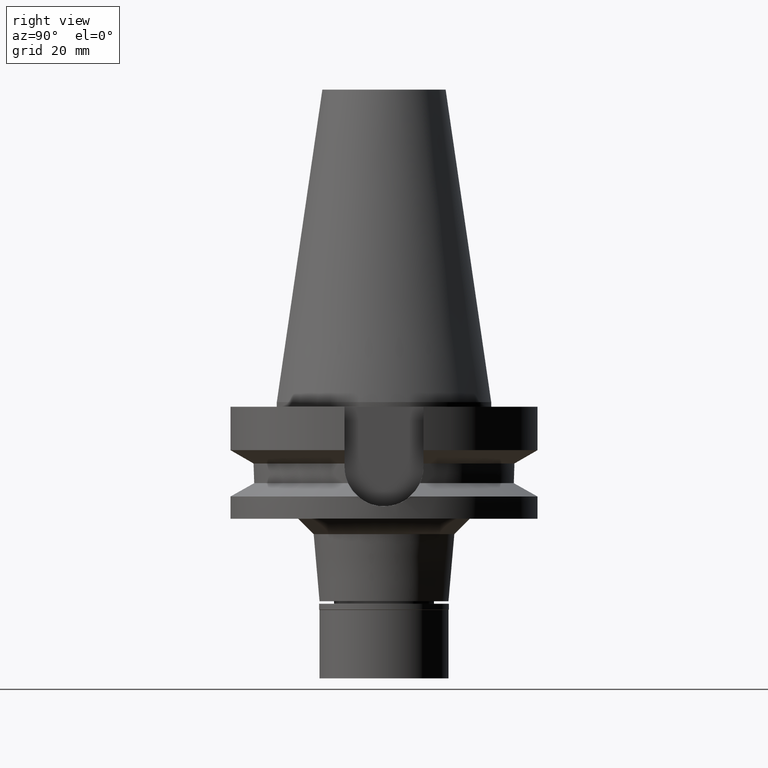
[diagram: clean part render]
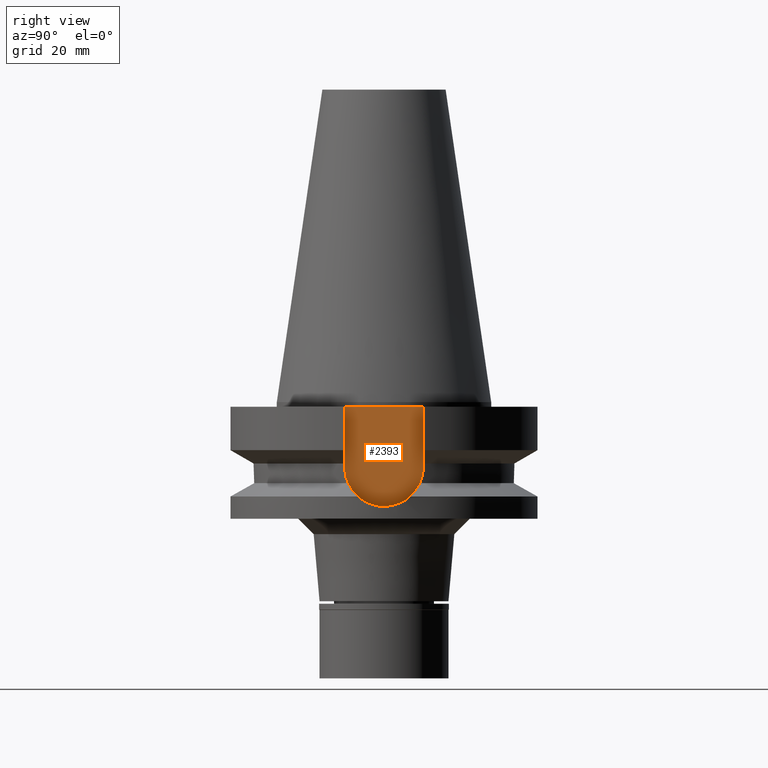
[diagram: same view with one face highlighted and labeled with its STEP entity id]
A machine part, right view. The second image highlights one B-rep face of the part: STEP entity #2393.
In plain terms, the highlighted planar face has unit normal (1, 0, 0).
Its self-contained STEP definition (entity closure, byte-faithful):
#50 = LINE ( 'NONE', #289, #1256 ) ;
#107 = CIRCLE ( 'NONE', #2316, 12.84999999999999964 ) ;
#143 = CARTESIAN_POINT ( 'NONE',  ( 35.39999999999999858, 12.84999999999999964, -1.500000000000000000 ) ) ;
#152 = VECTOR ( 'NONE', #2434, 1000.000000000000000 ) ;
#165 = LINE ( 'NONE', #2167, #152 ) ;
#264 = CARTESIAN_POINT ( 'NONE',  ( 35.39999999999999858, -12.84999999999999964, -21.14999999999999858 ) ) ;
#273 = DIRECTION ( 'NONE',  ( 1.000000000000000000, 0.0000000000000000000, 0.0000000000000000000 ) ) ;
#289 = CARTESIAN_POINT ( 'NONE',  ( 35.39999999999999858, 12.84999999999999964, -1.500000000000000000 ) ) ;
#336 = CARTESIAN_POINT ( 'NONE',  ( 35.39999999999999858, 0.0000000000000000000, -21.14999999999999858 ) ) ;
#390 = VECTOR ( 'NONE', #2519, 1000.000000000000000 ) ;
#472 = VERTEX_POINT ( 'NONE', #2162 ) ;
#499 = FACE_OUTER_BOUND ( 'NONE', #2897, .T. ) ;
#614 = DIRECTION ( 'NONE',  ( 0.0000000000000000000, 1.000000000000000000, 0.0000000000000000000 ) ) ;
#710 = VERTEX_POINT ( 'NONE', #143 ) ;
#896 = ORIENTED_EDGE ( 'NONE', *, *, #2501, .F. ) ;
#950 = EDGE_CURVE ( 'NONE', #710, #1576, #50, .T. ) ;
#997 = DIRECTION ( 'NONE',  ( 0.0000000000000000000, -1.000000000000000000, 0.0000000000000000000 ) ) ;
#1209 = AXIS2_PLACEMENT_3D ( 'NONE', #1470, #273, #2704 ) ;
#1256 = VECTOR ( 'NONE', #997, 1000.000000000000000 ) ;
#1342 = CARTESIAN_POINT ( 'NONE',  ( 35.39999999999999858, -12.84999999999999964, -1.500000000000000000 ) ) ;
#1470 = CARTESIAN_POINT ( 'NONE',  ( 35.39999999999999858, 0.0000000000000000000, 0.0000000000000000000 ) ) ;
#1576 = VERTEX_POINT ( 'NONE', #1342 ) ;
#2120 = EDGE_CURVE ( 'NONE', #2655, #1576, #2544, .T. ) ;
#2162 = CARTESIAN_POINT ( 'NONE',  ( 35.39999999999999858, 12.84999999999999964, -21.14999999999999858 ) ) ;
#2167 = CARTESIAN_POINT ( 'NONE',  ( 35.39999999999999858, 12.84999999999999964, -1.500000000000000000 ) ) ;
#2245 = CARTESIAN_POINT ( 'NONE',  ( 35.39999999999999858, -12.84999999999999964, -21.14999999999999858 ) ) ;
#2316 = AXIS2_PLACEMENT_3D ( 'NONE', #336, #2529, #614 ) ;
#2393 = ADVANCED_FACE ( 'NONE', ( #499 ), #2945, .T. ) ;
#2409 = ORIENTED_EDGE ( 'NONE', *, *, #950, .T. ) ;
#2425 = ORIENTED_EDGE ( 'NONE', *, *, #2643, .F. ) ;
#2434 = DIRECTION ( 'NONE',  ( 0.0000000000000000000, 0.0000000000000000000, -1.000000000000000000 ) ) ;
#2501 = EDGE_CURVE ( 'NONE', #472, #2655, #107, .T. ) ;
#2519 = DIRECTION ( 'NONE',  ( 0.0000000000000000000, 0.0000000000000000000, 1.000000000000000000 ) ) ;
#2529 = DIRECTION ( 'NONE',  ( -1.000000000000000000, 0.0000000000000000000, 0.0000000000000000000 ) ) ;
#2544 = LINE ( 'NONE', #2245, #390 ) ;
#2569 = ORIENTED_EDGE ( 'NONE', *, *, #2120, .F. ) ;
#2643 = EDGE_CURVE ( 'NONE', #710, #472, #165, .T. ) ;
#2655 = VERTEX_POINT ( 'NONE', #264 ) ;
#2704 = DIRECTION ( 'NONE',  ( 0.0000000000000000000, 1.000000000000000000, 0.0000000000000000000 ) ) ;
#2897 = EDGE_LOOP ( 'NONE', ( #2569, #896, #2425, #2409 ) ) ;
#2945 = PLANE ( 'NONE',  #1209 ) ;